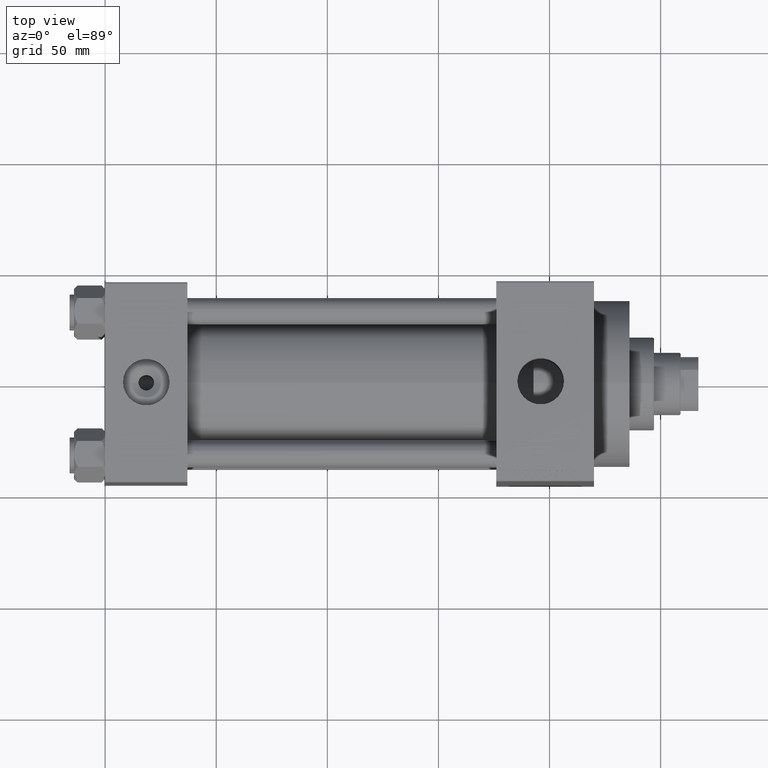
[diagram: clean part render]
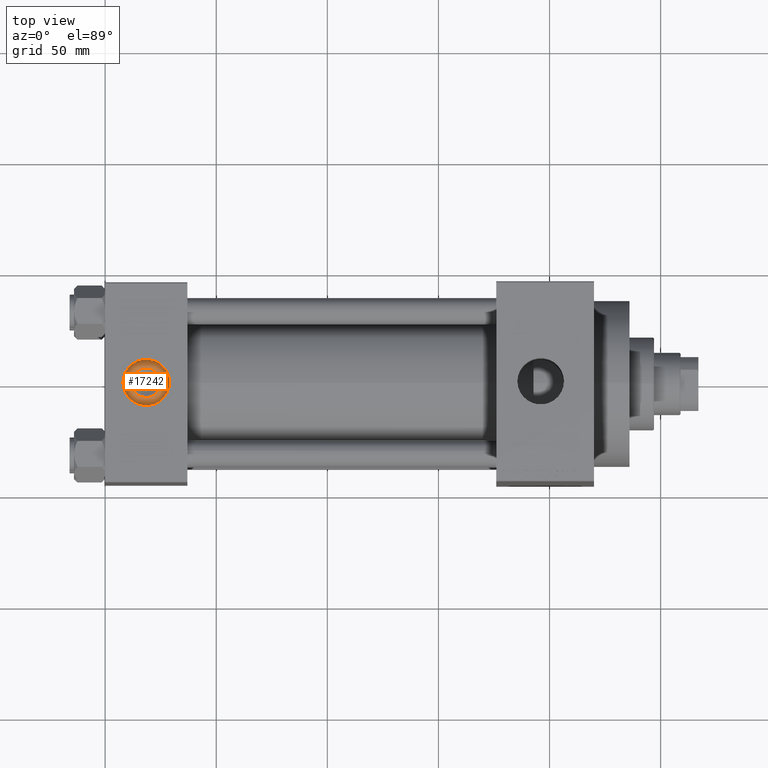
[diagram: same view with one face highlighted and labeled with its STEP entity id]
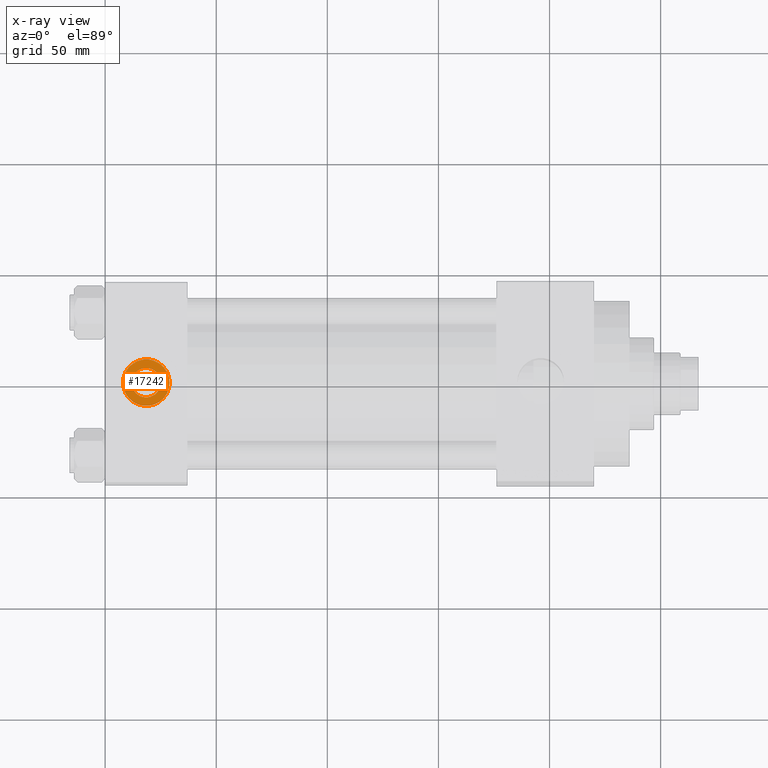
[diagram: x-ray of the same camera — body ghosted, the highlighted face saturated]
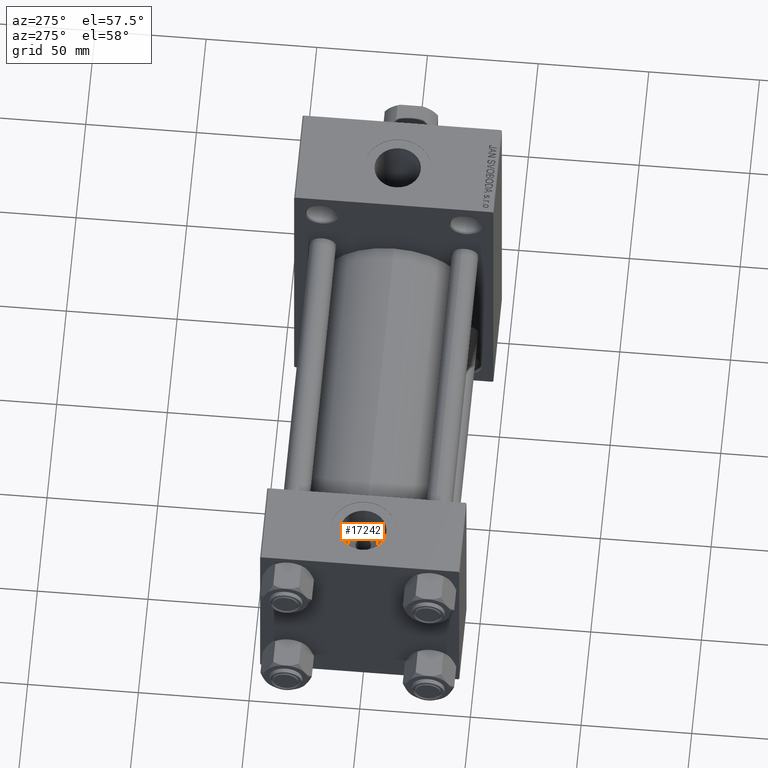
[diagram: same view with one face highlighted and labeled with its STEP entity id]
A machine part, top view. The second image highlights one B-rep face of the part: STEP entity #17242.
The next image is the same camera in x-ray: the body ghosted, the highlighted face saturated — about 0% of this face is hidden behind the body in this view.
A second angle (auxiliary view) of the same face is appended — the face is thin or edge-on in the first view.
In plain terms, the highlighted planar face has unit normal (0, 0, 1).
Its self-contained STEP definition (entity closure, byte-faithful):
#588 = FACE_BOUND ( 'NONE', #18009, .T. ) ;
#3101 = DIRECTION ( 'NONE',  ( 1.000000000000000000, 0.000000000000000000, 0.000000000000000000 ) ) ;
#3667 = ORIENTED_EDGE ( 'NONE', *, *, #5324, .T. ) ;
#3692 = FACE_OUTER_BOUND ( 'NONE', #14835, .T. ) ;
#5324 = EDGE_CURVE ( 'NONE', #15433, #10622, #27871, .T. ) ;
#5835 = CIRCLE ( 'NONE', #21922, 10.48000000000000043 ) ;
#6049 = CIRCLE ( 'NONE', #36710, 10.48000000000000043 ) ;
#6068 = CARTESIAN_POINT ( 'NONE',  ( 18.50000000000000000, -8.673617379884038628E-15, 34.20000000000000995 ) ) ;
#7032 = CARTESIAN_POINT ( 'NONE',  ( 18.50000000000000000, -8.673617379884038628E-15, 34.20000000000000995 ) ) ;
#7969 = AXIS2_PLACEMENT_3D ( 'NONE', #16965, #8820, #46005 ) ;
#8673 = CIRCLE ( 'NONE', #27098, 6.640000000000034319 ) ;
#8820 = DIRECTION ( 'NONE',  ( -0.000000000000000000, -0.000000000000000000, -1.000000000000000000 ) ) ;
#10166 = CARTESIAN_POINT ( 'NONE',  ( 28.98000000000000043, -8.673617379884038628E-15, 34.20000000000000995 ) ) ;
#10559 = DIRECTION ( 'NONE',  ( 0.000000000000000000, 0.000000000000000000, 1.000000000000000000 ) ) ;
#10622 = VERTEX_POINT ( 'NONE', #39868 ) ;
#11579 = PLANE ( 'NONE',  #32150 ) ;
#13261 = DIRECTION ( 'NONE',  ( 1.000000000000000000, 0.000000000000000000, 0.000000000000000000 ) ) ;
#13358 = VERTEX_POINT ( 'NONE', #30734 ) ;
#13505 = ORIENTED_EDGE ( 'NONE', *, *, #19809, .T. ) ;
#14835 = EDGE_LOOP ( 'NONE', ( #13505, #33867 ) ) ;
#15433 = VERTEX_POINT ( 'NONE', #38371 ) ;
#16965 = CARTESIAN_POINT ( 'NONE',  ( 18.50000000000000000, -8.673617379884038628E-15, 34.20000000000000995 ) ) ;
#17011 = DIRECTION ( 'NONE',  ( -0.000000000000000000, -0.000000000000000000, -1.000000000000000000 ) ) ;
#17242 = ADVANCED_FACE ( 'NONE', ( #588, #3692 ), #11579, .T. ) ;
#18009 = EDGE_LOOP ( 'NONE', ( #22282, #3667 ) ) ;
#19265 = VERTEX_POINT ( 'NONE', #10166 ) ;
#19809 = EDGE_CURVE ( 'NONE', #19265, #13358, #6049, .T. ) ;
#21665 = DIRECTION ( 'NONE',  ( 0.000000000000000000, 0.000000000000000000, 1.000000000000000000 ) ) ;
#21922 = AXIS2_PLACEMENT_3D ( 'NONE', #6068, #10559, #13261 ) ;
#22282 = ORIENTED_EDGE ( 'NONE', *, *, #32658, .T. ) ;
#27098 = AXIS2_PLACEMENT_3D ( 'NONE', #35966, #17011, #3101 ) ;
#27871 = CIRCLE ( 'NONE', #7969, 6.640000000000034319 ) ;
#30734 = CARTESIAN_POINT ( 'NONE',  ( 8.019999999999999574, -7.390187534377611561E-15, 34.20000000000000995 ) ) ;
#32150 = AXIS2_PLACEMENT_3D ( 'NONE', #7032, #21665, #40859 ) ;
#32658 = EDGE_CURVE ( 'NONE', #10622, #15433, #8673, .T. ) ;
#33867 = ORIENTED_EDGE ( 'NONE', *, *, #40394, .T. ) ;
#34071 = CARTESIAN_POINT ( 'NONE',  ( 18.50000000000000000, -8.673617379884038628E-15, 34.20000000000000995 ) ) ;
#35966 = CARTESIAN_POINT ( 'NONE',  ( 18.50000000000000000, -8.673617379884038628E-15, 34.20000000000000995 ) ) ;
#36710 = AXIS2_PLACEMENT_3D ( 'NONE', #34071, #44624, #37213 ) ;
#37213 = DIRECTION ( 'NONE',  ( 1.000000000000000000, 0.000000000000000000, 0.000000000000000000 ) ) ;
#38371 = CARTESIAN_POINT ( 'NONE',  ( 11.85999999999996390, -7.860451905250192574E-15, 34.20000000000000995 ) ) ;
#39868 = CARTESIAN_POINT ( 'NONE',  ( 25.14000000000003254, -8.673617379884038628E-15, 34.20000000000000995 ) ) ;
#40394 = EDGE_CURVE ( 'NONE', #13358, #19265, #5835, .T. ) ;
#40859 = DIRECTION ( 'NONE',  ( 1.000000000000000000, 0.000000000000000000, -0.000000000000000000 ) ) ;
#44624 = DIRECTION ( 'NONE',  ( 0.000000000000000000, 0.000000000000000000, 1.000000000000000000 ) ) ;
#46005 = DIRECTION ( 'NONE',  ( 1.000000000000000000, 0.000000000000000000, 0.000000000000000000 ) ) ;